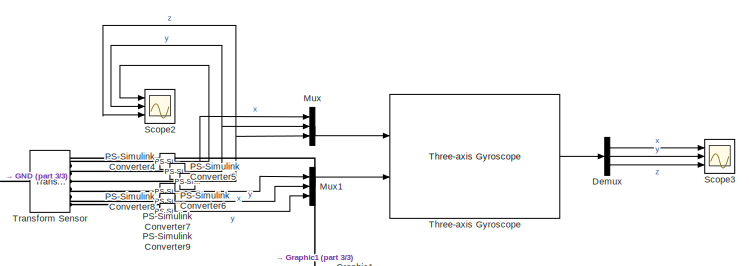
[diagram: root canvas - part 1/3, top right region]
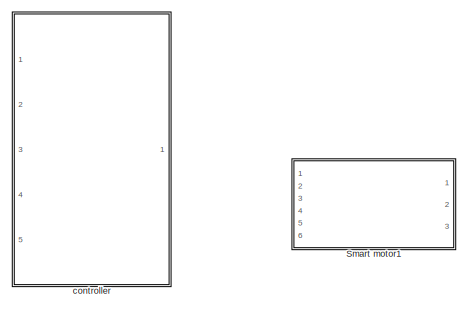
[diagram: root canvas - part 2/3, top left region]
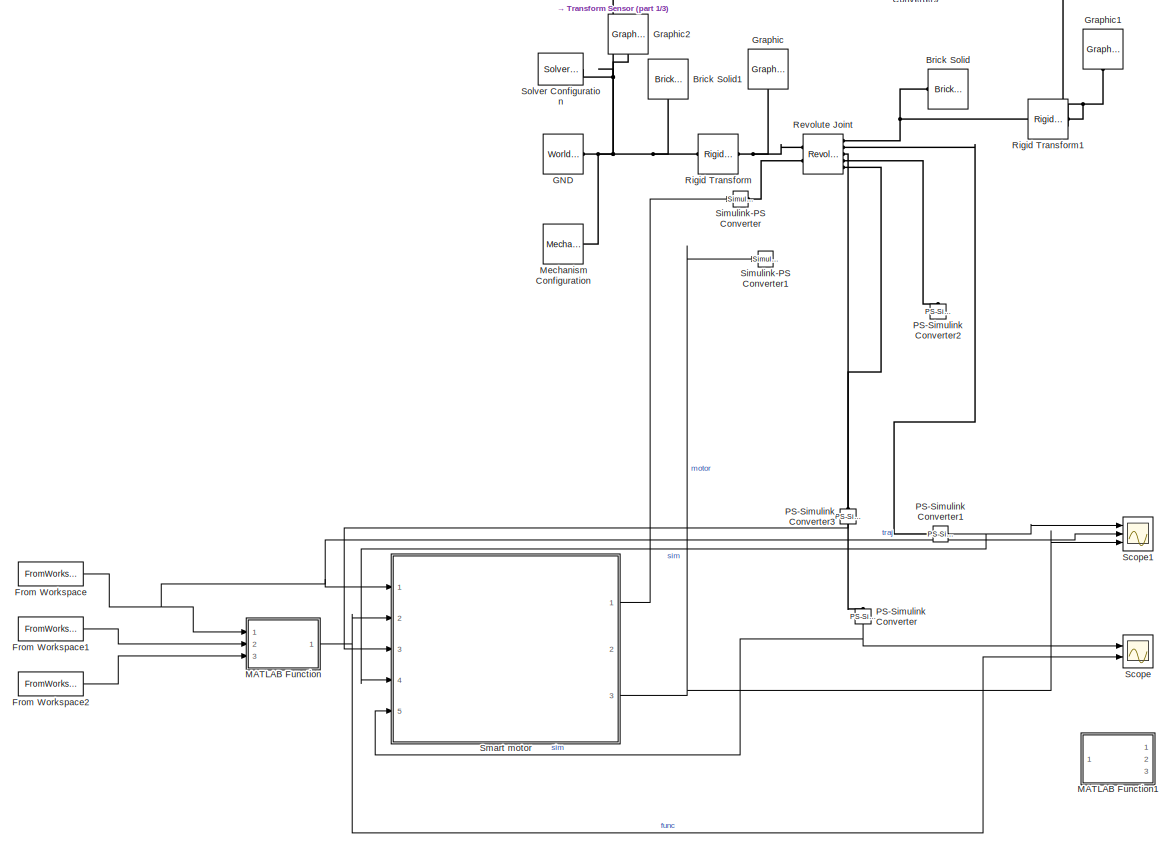
[diagram: root canvas - part 3/3, center side, full height]
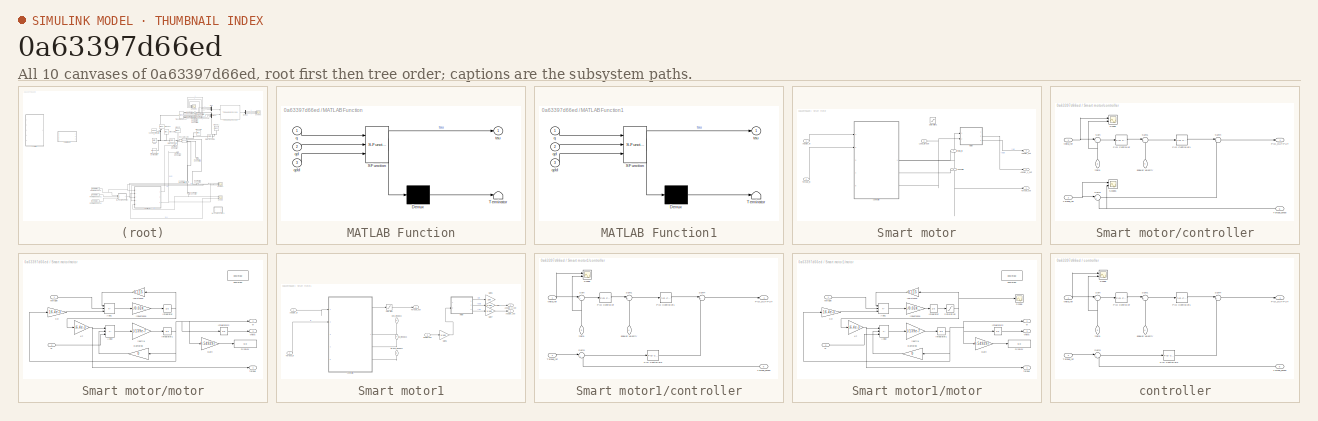
[diagram: thumbnail index - all 10 canvases of the model, root first then tree order]
MODEL slx_0a63397d66ed
KIND model
CONFIG AbsTol = auto
CONFIG EnableMultiTasking = off
CONFIG FixedStep = auto
CONFIG MaxStep = auto
CONFIG MinStep = auto
CONFIG RelTol = 1e-3
CONFIG SampleTimeConstraint = Unconstrained
CONFIG SolverName = VariableStepAuto
CONFIG StartTime = 0.0
CONFIG StopTime = 5
BLOCK [Reference] Brick Solid  REF=sm_lib/Body Elements/Brick Solid
  Ports = [0, 0, 0, 0, 0, 1, 1]
  SourceBlock = sm_lib/Body Elements/Brick Solid
  SourceProductBaseCode = MS
  SourceType = Brick Solid
BLOCK [Reference] Brick Solid1  REF=sm_lib/Body Elements/Brick Solid
  NameLocation = left
  Ports = [0, 0, 0, 0, 0, 1, 1]
  SourceBlock = sm_lib/Body Elements/Brick Solid
  SourceProductBaseCode = MS
  SourceType = Brick Solid
BLOCK [Demux] Demux
  Outputs = 3
  Ports = [1, 3]
BLOCK [FromWorkspace] From Workspace
  VariableName = q1dsim
BLOCK [FromWorkspace] From Workspace1
  VariableName = q1vsim
BLOCK [FromWorkspace] From Workspace2
  VariableName = q1asim
BLOCK [Reference] GND  REF=sm_lib/Frames and
Transforms/World Frame
  Ports = [0, 0, 0, 0, 0, 0, 1]
  SourceBlock = sm_lib/Frames and\nTransforms/World Frame
  SourceProductBaseCode = MS
  SourceType = World Frame
BLOCK [Reference] Graphic  REF=sm_lib/Body Elements/Graphic
  NameLocation = left
  Ports = [0, 0, 0, 0, 0, 0, 1]
  SourceBlock = sm_lib/Body Elements/Graphic
  SourceProductBaseCode = MS
  SourceType = Graphic
BLOCK [Reference] Graphic1  REF=sm_lib/Body Elements/Graphic
  NameLocation = left
  Ports = [0, 0, 0, 0, 0, 0, 1]
  SourceBlock = sm_lib/Body Elements/Graphic
  SourceProductBaseCode = MS
  SourceType = Graphic
BLOCK [Reference] Graphic2  REF=sm_lib/Body Elements/Graphic
  NameLocation = left
  Ports = [0, 0, 0, 0, 0, 0, 1]
  SourceBlock = sm_lib/Body Elements/Graphic
  SourceProductBaseCode = MS
  SourceType = Graphic
BLOCK [SubSystem] MATLAB Function
  ErrorFcn = Stateflow.Translate.translate
  PermitHierarchicalResolution = ExplicitOnly
  Ports = [3, 1]
  RequestExecContextInheritance = off
  SFBlockType = MATLAB Function
  TreatAsAtomicUnit = on
BLOCK [Demux] MATLAB Function/ Demux 
  Outputs = 1
  Ports = [1, 1]
BLOCK [S-Function] MATLAB Function/ SFunction 
  EnableBusSupport = on
  FunctionName = sf_sfun
  PortCounts = [3 2]
  Ports = [3, 2]
  SFcnIsStateOwnerBlock = off
  SFunctionDeploymentMode = off
  Tag = Stateflow S-Function 2
BLOCK [Terminator] MATLAB Function/ Terminator 
BLOCK [Inport] MATLAB Function/q
BLOCK [Inport] MATLAB Function/qd
  Port = 2
BLOCK [Inport] MATLAB Function/qdd
  Port = 3
BLOCK [Outport] MATLAB Function/tau
BLOCK [SubSystem] MATLAB Function1
  Commented = on
  ErrorFcn = Stateflow.Translate.translate
  NameLocation = top
  PermitHierarchicalResolution = ExplicitOnly
  Ports = [3, 1]
  RequestExecContextInheritance = off
  SFBlockType = MATLAB Function
  TreatAsAtomicUnit = on
BLOCK [Demux] MATLAB Function1/ Demux 
  Outputs = 1
  Ports = [1, 1]
BLOCK [S-Function] MATLAB Function1/ SFunction 
  EnableBusSupport = on
  FunctionName = sf_sfun
  PortCounts = [3 2]
  Ports = [3, 2]
  SFcnIsStateOwnerBlock = off
  SFunctionDeploymentMode = off
  Tag = Stateflow S-Function 1
BLOCK [Terminator] MATLAB Function1/ Terminator 
BLOCK [Inport] MATLAB Function1/q
BLOCK [Inport] MATLAB Function1/qd
  Port = 2
BLOCK [Inport] MATLAB Function1/qdd
  Port = 3
BLOCK [Outport] MATLAB Function1/tau
BLOCK [Reference] Mechanism Configuration  REF=sm_lib/Utilities/Mechanism
Configuration
  Ports = [0, 0, 0, 0, 0, 0, 1]
  SourceBlock = sm_lib/Utilities/Mechanism\nConfiguration
  SourceProductBaseCode = MS
  SourceType = Mechanism\nConfiguration
BLOCK [Mux] Mux
  DisplayOption = bar
  Inputs = 3
  Ports = [3, 1]
BLOCK [Mux] Mux1
  DisplayOption = bar
  Inputs = 3
  Ports = [3, 1]
BLOCK [Reference] PS-Simulink Converter  REF=nesl_utility/PS-Simulink
Converter
  NameLocation = left
  Ports = [0, 1, 0, 0, 0, 1]
  SourceBlock = nesl_utility/PS-Simulink\nConverter
  SourceProductBaseCode = PW,SS
  SourceType = PS-Simulink\nConverter
BLOCK [Reference] PS-Simulink Converter1  REF=nesl_utility/PS-Simulink
Converter
  Ports = [0, 1, 0, 0, 0, 1]
  SourceBlock = nesl_utility/PS-Simulink\nConverter
  SourceProductBaseCode = PW,SS
  SourceType = PS-Simulink\nConverter
BLOCK [Reference] PS-Simulink Converter2  REF=nesl_utility/PS-Simulink
Converter
  NameLocation = left
  Ports = [0, 1, 0, 0, 0, 1]
  SourceBlock = nesl_utility/PS-Simulink\nConverter
  SourceProductBaseCode = PW,SS
  SourceType = PS-Simulink\nConverter
BLOCK [Reference] PS-Simulink Converter3  REF=nesl_utility/PS-Simulink
Converter
  NameLocation = left
  Ports = [0, 1, 0, 0, 0, 1]
  SourceBlock = nesl_utility/PS-Simulink\nConverter
  SourceProductBaseCode = PW,SS
  SourceType = PS-Simulink\nConverter
BLOCK [Reference] PS-Simulink Converter4  REF=nesl_utility/PS-Simulink
Converter
  Ports = [0, 1, 0, 0, 0, 1]
  SourceBlock = nesl_utility/PS-Simulink\nConverter
  SourceProductBaseCode = PW,SS
  SourceType = PS-Simulink\nConverter
BLOCK [Reference] PS-Simulink Converter5  REF=nesl_utility/PS-Simulink
Converter
  Ports = [0, 1, 0, 0, 0, 1]
  SourceBlock = nesl_utility/PS-Simulink\nConverter
  SourceProductBaseCode = PW,SS
  SourceType = PS-Simulink\nConverter
BLOCK [Reference] PS-Simulink Converter6  REF=nesl_utility/PS-Simulink
Converter
  Ports = [0, 1, 0, 0, 0, 1]
  SourceBlock = nesl_utility/PS-Simulink\nConverter
  SourceProductBaseCode = PW,SS
  SourceType = PS-Simulink\nConverter
BLOCK [Reference] PS-Simulink Converter7  REF=nesl_utility/PS-Simulink
Converter
  Ports = [0, 1, 0, 0, 0, 1]
  SourceBlock = nesl_utility/PS-Simulink\nConverter
  SourceProductBaseCode = PW,SS
  SourceType = PS-Simulink\nConverter
BLOCK [Reference] PS-Simulink Converter8  REF=nesl_utility/PS-Simulink
Converter
  Ports = [0, 1, 0, 0, 0, 1]
  SourceBlock = nesl_utility/PS-Simulink\nConverter
  SourceProductBaseCode = PW,SS
  SourceType = PS-Simulink\nConverter
BLOCK [Reference] PS-Simulink Converter9  REF=nesl_utility/PS-Simulink
Converter
  Ports = [0, 1, 0, 0, 0, 1]
  SourceBlock = nesl_utility/PS-Simulink\nConverter
  SourceProductBaseCode = PW,SS
  SourceType = PS-Simulink\nConverter
BLOCK [Reference] Revolute Joint  REF=sm_lib/Joints/Revolute Joint
  Ports = [0, 0, 0, 0, 0, 2, 5]
  SourceBlock = sm_lib/Joints/Revolute Joint
  SourceProductBaseCode = MS
  SourceType = Revolute Joint
BLOCK [Reference] Rigid Transform  REF=sm_lib/Frames and
Transforms/Rigid
Transform
  Ports = [0, 0, 0, 0, 0, 1, 1]
  SourceBlock = sm_lib/Frames and\nTransforms/Rigid\nTransform
  SourceProductBaseCode = MS
  SourceType = Rigid\nTransform
BLOCK [Reference] Rigid Transform1  REF=sm_lib/Frames and
Transforms/Rigid
Transform
  Ports = [0, 0, 0, 0, 0, 1, 1]
  SourceBlock = sm_lib/Frames and\nTransforms/Rigid\nTransform
  SourceProductBaseCode = MS
  SourceType = Rigid\nTransform
BLOCK [Scope] Scope
  Floating = off
  NumInputPorts = 2
  Ports = [2]
  ScopeSpecificationString = Simulink.scopes.TimeScopeBlockCfg('CurrentConfiguration', extmgr.ConfigurationSet(extmgr.Configuration('Core','General UI',true),extmgr.Configuration('Core','Source UI',true),extmgr.Configuration('Sources','WiredSimulink',true,'DataLoggingVariableName','ScopeData1'),extmgr.Configuration('Visuals','Time Domain',true,'SerializedDisplays',{struct('MinYLimReal','-0.2289','MaxYLimReal','1.9941','YLabel...<+1390ch>
BLOCK [Scope] Scope1
  Floating = off
  NumInputPorts = 3
  Ports = [3]
  ScopeSpecificationString = Simulink.scopes.TimeScopeBlockCfg('CurrentConfiguration', extmgr.ConfigurationSet(extmgr.Configuration('Core','General UI',true),extmgr.Configuration('Core','Source UI',true),extmgr.Configuration('Sources','WiredSimulink',true,'DataLoggingVariableName','ScopeData2'),extmgr.Configuration('Visuals','Time Domain',true,'SerializedDisplays',{struct('MinYLimReal','-0.20118','MaxYLimReal','1.81059','YLab...<+2691ch>
BLOCK [Scope] Scope2
  Floating = off
  NumInputPorts = 3
  Ports = [3]
  ScopeSpecificationString = Simulink.scopes.TimeScopeBlockCfg('CurrentConfiguration', extmgr.ConfigurationSet(extmgr.Configuration('Core','General UI',true),extmgr.Configuration('Core','Source UI',true),extmgr.Configuration('Sources','WiredSimulink',true,'DataLoggingVariableName','ScopeData1'),extmgr.Configuration('Visuals','Time Domain',true,'SerializedDisplays',{struct('MinYLimReal','-0.07164','MaxYLimReal','0.64475','YLab...<+1397ch>
BLOCK [Scope] Scope3
  Floating = off
  NumInputPorts = 3
  Ports = [3]
  ScopeSpecificationString = Simulink.scopes.TimeScopeBlockCfg('CurrentConfiguration', extmgr.ConfigurationSet(extmgr.Configuration('Core','General UI',true),extmgr.Configuration('Core','Source UI',true),extmgr.Configuration('Sources','WiredSimulink',true,'DataLoggingVariableName','ScopeData2'),extmgr.Configuration('Visuals','Time Domain',true,'SerializedDisplays',{struct('MinYLimReal','-0.15753','MaxYLimReal','0.6641','YLabe...<+1362ch>
BLOCK [Reference] Simulink-PS Converter  REF=nesl_utility/Simulink-PS
Converter
  Ports = [1, 0, 0, 0, 0, 0, 1]
  SourceBlock = nesl_utility/Simulink-PS\nConverter
  SourceProductBaseCode = PW,SS
  SourceType = Simulink-PS\nConverter
BLOCK [Reference] Simulink-PS Converter1  REF=nesl_utility/Simulink-PS
Converter
  Ports = [1, 0, 0, 0, 0, 0, 1]
  SourceBlock = nesl_utility/Simulink-PS\nConverter
  SourceProductBaseCode = PW,SS
  SourceType = Simulink-PS\nConverter
BLOCK [SubSystem] Smart motor
  Ports = [5, 3]
  RequestExecContextInheritance = off
BLOCK [Inport] Smart motor/Angular_in
BLOCK [Outport] Smart motor/Angular_out
  Port = 3
BLOCK [Outport] Smart motor/Angular_v_out
  Port = 2
BLOCK [Inport] Smart motor/Load_torque
  Port = 3
BLOCK [Saturate] Smart motor/Saturation1
  LowerLimit = -12
  UpperLimit = 12
BLOCK [Inport] Smart motor/Torque_in
  Port = 2
BLOCK [Outport] Smart motor/Torque_out
BLOCK [Inport] Smart motor/angVelfb
  NameLocation = top
  Port = 5
BLOCK [SubSystem] Smart motor/controller
  PortSchema = {"entries":[{"content":{"sides":[{"content":{"connectorIds":["In1","In2"]},"type":"ConnectorPlacement.EquallySpacedRectSide","uuid":"8a7634be-fa1b-404b-89a0-2c01fe6be74e"},{"content":{"connectorIds":["Out1","In3","In4","In5"],"side":"RIGHT"},"type":"ConnectorPlacement.EquallySpacedRectSide","uuid":"8f130a65-85af-479a-b8ce-1781e3e6a993"},{"content":{"connectorIds":[],"side":"TOP"},"type":"Connector...<+264ch>  <repeated x3 — deduplicated; at blocks: controller>
  Ports = [5, 1]
  RequestExecContextInheritance = off
BLOCK [Reference] Smart motor/controller/PID Controller  REF=slpidlib/PID Controller
  Ports = [1, 1]
  SourceBlock = slpidlib/PID Controller
  SourceProductBaseCode = SL
  SourceType = PID 1dof
BLOCK [Reference] Smart motor/controller/PID Controller1  REF=slpidlib/PID Controller
  Ports = [1, 1]
  SourceBlock = slpidlib/PID Controller
  SourceProductBaseCode = SL
  SourceType = PID 1dof
BLOCK [Outport] Smart motor/controller/PID_OUTPUT
BLOCK [Scope] Smart motor/controller/Scope
  Floating = off
  NumInputPorts = 2
  Ports = [2]
  ScopeSpecificationString = Simulink.scopes.TimeScopeBlockCfg('CurrentConfiguration', extmgr.ConfigurationSet(extmgr.Configuration('Core','General UI',true),extmgr.Configuration('Core','Source UI',true),extmgr.Configuration('Sources','WiredSimulink',true,'DataLoggingVariableName','ScopeData3'),extmgr.Configuration('Visuals','Time Domain',true,'SerializedDisplays',{struct('MinYLimReal','-0.20118','MaxYLimReal','1.81059','YLab...<+1376ch>
BLOCK [Scope] Smart motor/controller/Scope1
  Floating = off
  NumInputPorts = 2
  Ports = [2]
  ScopeSpecificationString = Simulink.scopes.TimeScopeBlockCfg('CurrentConfiguration', extmgr.ConfigurationSet(extmgr.Configuration('Core','General UI',true),extmgr.Configuration('Core','Source UI',true),extmgr.Configuration('Sources','WiredSimulink',true,'DataLoggingVariableName','ScopeData4'),extmgr.Configuration('Visuals','Time Domain',true),extmgr.Configuration('Tools','Plot Navigation',true),extmgr.Configuration('Tools',...<+40ch>
BLOCK [Sum] Smart motor/controller/Sum
  Inputs = |+-
  Ports = [2, 1]
BLOCK [Sum] Smart motor/controller/Sum1
  Inputs = |+-
  Ports = [2, 1]
BLOCK [Sum] Smart motor/controller/Sum3
  Inputs = |+-
  Ports = [2, 1]
BLOCK [Sum] Smart motor/controller/Sum4
  Inputs = |++
  Ports = [2, 1]
BLOCK [Inport] Smart motor/controller/Torque_ref
  Port = 2
BLOCK [Inport] Smart motor/controller/Torque_sense
  NameLocation = top
  Port = 5
BLOCK [Inport] Smart motor/controller/angular velocity
  NameLocation = right
  Port = 4
BLOCK [Inport] Smart motor/controller/theta
  NameLocation = right
  Port = 3
BLOCK [Inport] Smart motor/controller/theta_ref
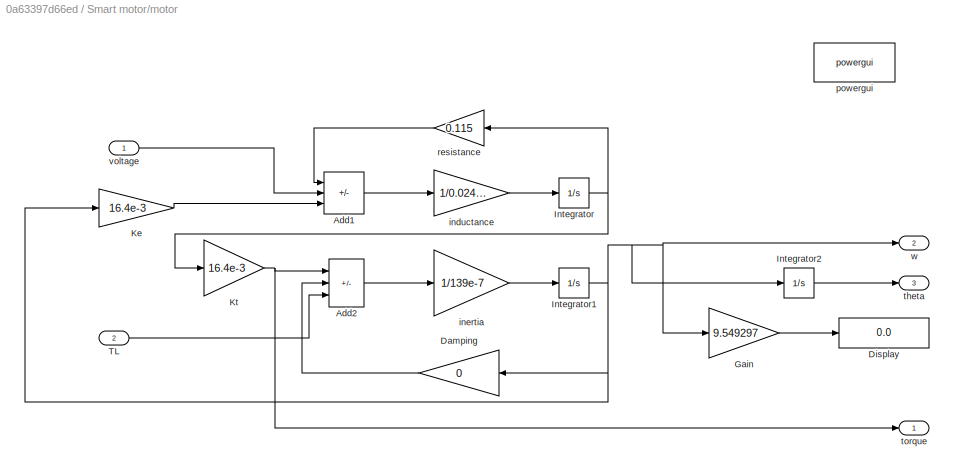
BLOCK [SubSystem] Smart motor/motor
  Ports = [2, 3]
  RequestExecContextInheritance = off
BLOCK [Sum] Smart motor/motor/Add1
  IconShape = rectangular
  Inputs = -+-
  Ports = [3, 1]
BLOCK [Sum] Smart motor/motor/Add2
  IconShape = rectangular
  Inputs = +-+
  Ports = [3, 1]
BLOCK [Gain] Smart motor/motor/Damping
  Gain = 0
  NameLocation = top
BLOCK [Display] Smart motor/motor/Display
  Decimation = 1
  Ports = [1]
BLOCK [Gain] Smart motor/motor/Gain
  Gain = 9.549297
BLOCK [Integrator] Smart motor/motor/Integrator
  Ports = [1, 1]
BLOCK [Integrator] Smart motor/motor/Integrator1
  Ports = [1, 1]
BLOCK [Integrator] Smart motor/motor/Integrator2
  Ports = [1, 1]
BLOCK [Gain] Smart motor/motor/Ke
  Gain = 16.4e-3
BLOCK [Gain] Smart motor/motor/Kt
  Gain = 16.4e-3
BLOCK [Inport] Smart motor/motor/TL
  Port = 2
BLOCK [Gain] Smart motor/motor/inductance
  Gain = 1/0.0245e-3
BLOCK [Gain] Smart motor/motor/inertia
  Gain = 1/139e-7
BLOCK [Reference] Smart motor/motor/powergui  REF=spspowerguiLib/powergui
  Ports = []
  Priority = 1
  SourceBlock = spspowerguiLib/powergui
  SourceProductBaseCode = PS
  SourceType = PSB option menu block
BLOCK [Gain] Smart motor/motor/resistance
  Gain = 0.115
  NameLocation = top
BLOCK [Outport] Smart motor/motor/theta
  Port = 3
BLOCK [Outport] Smart motor/motor/torque
BLOCK [Inport] Smart motor/motor/voltage
BLOCK [Outport] Smart motor/motor/w
  Port = 2
BLOCK [Inport] Smart motor/theta_fb
  NameLocation = top
  Port = 4
BLOCK [SubSystem] Smart motor1
  Commented = on
  Ports = [6, 3]
  RequestExecContextInheritance = off
BLOCK [Inport] Smart motor1/Angular_in
BLOCK [Outport] Smart motor1/Angular_out
  Port = 3
BLOCK [Outport] Smart motor1/Angular_v_out
  Port = 2
BLOCK [Gain] Smart motor1/Gain1
  Gain = 1/100
BLOCK [Gain] Smart motor1/Gain5
  Gain = 1/100
BLOCK [Gain] Smart motor1/Gain6
  Gain = 100
BLOCK [Gain] Smart motor1/Gain7
  Gain = 1/100
BLOCK [Saturate] Smart motor1/Saturation
  LowerLimit = -12
  UpperLimit = 12
BLOCK [Inport] Smart motor1/Torque_in
  Port = 2
BLOCK [Outport] Smart motor1/Torque_out
BLOCK [SubSystem] Smart motor1/controller
  Ports = [5, 1]
  RequestExecContextInheritance = off
BLOCK [Reference] Smart motor1/controller/PID Controller  REF=slpidlib/PID Controller
  Ports = [1, 1]
  SourceBlock = slpidlib/PID Controller
  SourceProductBaseCode = SL
  SourceType = PID 1dof
BLOCK [Reference] Smart motor1/controller/PID Controller1  REF=slpidlib/PID Controller
  Ports = [1, 1]
  SourceBlock = slpidlib/PID Controller
  SourceProductBaseCode = SL
  SourceType = PID 1dof
BLOCK [Reference] Smart motor1/controller/PID Controller3  REF=slpidlib/PID Controller
  Ports = [1, 1]
  SourceBlock = slpidlib/PID Controller
  SourceProductBaseCode = SL
  SourceType = PID 1dof
BLOCK [Outport] Smart motor1/controller/PID_OUTPUT
BLOCK [Scope] Smart motor1/controller/Scope
  Floating = off
  NumInputPorts = 2
  Ports = [2]
  ScopeSpecificationString = Simulink.scopes.TimeScopeBlockCfg('CurrentConfiguration', extmgr.ConfigurationSet(extmgr.Configuration('Core','General UI',true),extmgr.Configuration('Core','Source UI',true),extmgr.Configuration('Sources','WiredSimulink',true,'DataLoggingVariableName','ScopeData8'),extmgr.Configuration('Visuals','Time Domain',true,'SerializedDisplays',{struct('MinYLimReal','-0.4827','MaxYLimReal','0.31629','YLabe...<+1446ch>
BLOCK [Sum] Smart motor1/controller/Sum
  Inputs = |+-
  Ports = [2, 1]
BLOCK [Sum] Smart motor1/controller/Sum1
  Inputs = |+-
  Ports = [2, 1]
BLOCK [Sum] Smart motor1/controller/Sum3
  Inputs = |+-
  Ports = [2, 1]
BLOCK [Sum] Smart motor1/controller/Sum4
  Inputs = |++
  Ports = [2, 1]
BLOCK [Inport] Smart motor1/controller/Torque_ref
  Port = 2
BLOCK [Inport] Smart motor1/controller/Torque_sense
  NameLocation = top
  Port = 5
BLOCK [Inport] Smart motor1/controller/angular velocity
  NameLocation = right
  Port = 4
BLOCK [Inport] Smart motor1/controller/theta
  NameLocation = right
  Port = 3
BLOCK [Inport] Smart motor1/controller/theta_ref
BLOCK [Inport] Smart motor1/load torque
  Port = 6
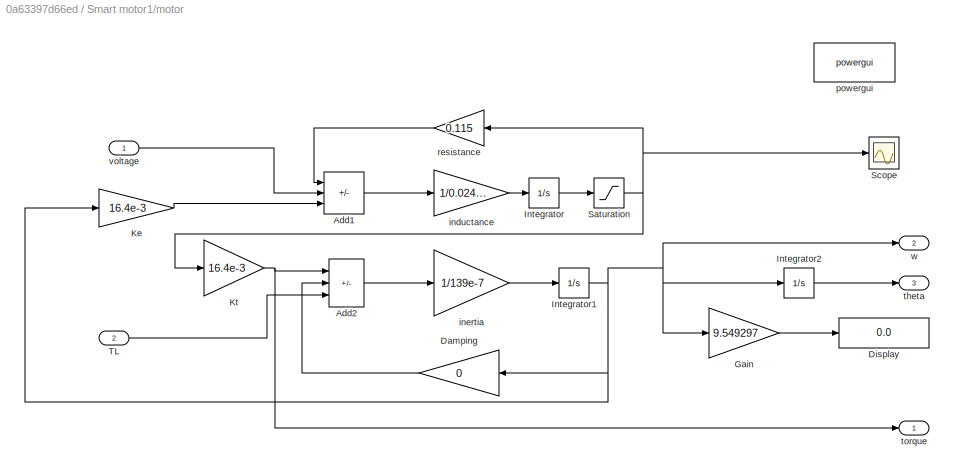
BLOCK [SubSystem] Smart motor1/motor
  Ports = [2, 3]
  RequestExecContextInheritance = off
BLOCK [Sum] Smart motor1/motor/Add1
  IconShape = rectangular
  Inputs = -+-
  Ports = [3, 1]
BLOCK [Sum] Smart motor1/motor/Add2
  IconShape = rectangular
  Inputs = +-+
  Ports = [3, 1]
BLOCK [Gain] Smart motor1/motor/Damping
  Gain = 0
  NameLocation = top
BLOCK [Display] Smart motor1/motor/Display
  Decimation = 1
  Ports = [1]
BLOCK [Gain] Smart motor1/motor/Gain
  Gain = 9.549297
BLOCK [Integrator] Smart motor1/motor/Integrator
  Ports = [1, 1]
BLOCK [Integrator] Smart motor1/motor/Integrator1
  Ports = [1, 1]
BLOCK [Integrator] Smart motor1/motor/Integrator2
  Ports = [1, 1]
BLOCK [Gain] Smart motor1/motor/Ke
  Gain = 16.4e-3
BLOCK [Gain] Smart motor1/motor/Kt
  Gain = 16.4e-3
BLOCK [Saturate] Smart motor1/motor/Saturation
  LowerLimit = -6
  UpperLimit = 6
BLOCK [Scope] Smart motor1/motor/Scope
  Floating = off
  NumInputPorts = 1
  Ports = [1]
  ScopeSpecificationString = Simulink.scopes.TimeScopeBlockCfg('CurrentConfiguration', extmgr.ConfigurationSet(extmgr.Configuration('Core','General UI',true),extmgr.Configuration('Core','Source UI',true),extmgr.Configuration('Sources','WiredSimulink',true,'DataLoggingVariableName','ScopeData10'),extmgr.Configuration('Visuals','Time Domain',true,'SerializedDisplays',{struct('MinYLimReal','-7.5','MaxYLimReal','7.5','YLabelReal'...<+1436ch>
BLOCK [Inport] Smart motor1/motor/TL
  Port = 2
BLOCK [Gain] Smart motor1/motor/inductance
  Gain = 1/0.0245e-3
BLOCK [Gain] Smart motor1/motor/inertia
  Gain = 1/139e-7
BLOCK [Reference] Smart motor1/motor/powergui  REF=spspowerguiLib/powergui
  Ports = []
  Priority = 1
  SourceBlock = spspowerguiLib/powergui
  SourceProductBaseCode = PS
  SourceType = PSB option menu block
BLOCK [Gain] Smart motor1/motor/resistance
  Gain = 0.115
  NameLocation = top
BLOCK [Outport] Smart motor1/motor/theta
  Port = 3
BLOCK [Outport] Smart motor1/motor/torque
BLOCK [Inport] Smart motor1/motor/voltage
BLOCK [Outport] Smart motor1/motor/w
  Port = 2
BLOCK [Inport] Smart motor1/pos_feedbck
  NameLocation = left
  Port = 3
BLOCK [Inport] Smart motor1/torque_feedbck
  NameLocation = left
  Port = 5
BLOCK [Inport] Smart motor1/w_feedbck
  NameLocation = left
  Port = 4
BLOCK [Reference] Solver Configuration  REF=nesl_utility/Solver
Configuration
  Ports = [0, 0, 0, 0, 0, 0, 1]
  SourceBlock = nesl_utility/Solver\nConfiguration
  SourceProductBaseCode = PW,SS
  SourceType = Solver\nConfiguration
BLOCK [Reference] Three-axis Gyroscope  REF=aerolibnav/Three-axis Gyroscope
  Ports = [2, 1]
  SourceBlock = aerolibnav/Three-axis Gyroscope
  SourceProductBaseCode = AE
  SourceType = Three-axis Gyroscope
BLOCK [Reference] Transform Sensor  REF=sm_lib/Frames and
Transforms/Transform
Sensor
  Ports = [0, 0, 0, 0, 0, 1, 7]
  SourceBlock = sm_lib/Frames and\nTransforms/Transform\nSensor
  SourceProductBaseCode = MS
  SourceType = Transform\nSensor
BLOCK [SubSystem] controller
  Ports = [5, 1]
  RequestExecContextInheritance = off
BLOCK [Reference] controller/PID Controller  REF=slpidlib/PID Controller
  Ports = [1, 1]
  SourceBlock = slpidlib/PID Controller
  SourceProductBaseCode = SL
  SourceType = PID 1dof
BLOCK [Reference] controller/PID Controller1  REF=slpidlib/PID Controller
  Ports = [1, 1]
  SourceBlock = slpidlib/PID Controller
  SourceProductBaseCode = SL
  SourceType = PID 1dof
BLOCK [Reference] controller/PID Controller3  REF=slpidlib/PID Controller
  Ports = [1, 1]
  SourceBlock = slpidlib/PID Controller
  SourceProductBaseCode = SL
  SourceType = PID 1dof
BLOCK [Outport] controller/PID_OUTPUT
BLOCK [Scope] controller/Scope
  Floating = off
  NumInputPorts = 2
  Ports = [2]
  ScopeSpecificationString = Simulink.scopes.TimeScopeBlockCfg('CurrentConfiguration', extmgr.ConfigurationSet(extmgr.Configuration('Core','General UI',true),extmgr.Configuration('Core','Source UI',true),extmgr.Configuration('Sources','WiredSimulink',true,'DataLoggingVariableName','ScopeData8'),extmgr.Configuration('Visuals','Time Domain',true,'SerializedDisplays',{struct('MinYLimReal','-0.4827','MaxYLimReal','0.31629','YLabe...<+1446ch>
BLOCK [Sum] controller/Sum
  Inputs = |+-
  Ports = [2, 1]
BLOCK [Sum] controller/Sum1
  Inputs = |+-
  Ports = [2, 1]
BLOCK [Sum] controller/Sum3
  Inputs = |+-
  Ports = [2, 1]
BLOCK [Sum] controller/Sum4
  Inputs = |++
  Ports = [2, 1]
BLOCK [Inport] controller/Torque_ref
  Port = 2
BLOCK [Inport] controller/Torque_sense
  NameLocation = top
  Port = 5
BLOCK [Inport] controller/angular velocity
  NameLocation = right
  Port = 4
BLOCK [Inport] controller/theta
  NameLocation = right
  Port = 3
BLOCK [Inport] controller/theta_ref
LINE Demux:1 -> Scope3:1
LINE Demux:2 -> Scope3:2
LINE Demux:3 -> Scope3:3
LINE From Workspace1:1 -> MATLAB Function:2
LINE From Workspace2:1 -> MATLAB Function:3
NET From Workspace:1 -> MATLAB Function:1, Scope1:2, Smart motor:1
NET MATLAB Function:1 -> Scope:2, Smart motor:2
LINE Mux1:1 -> Three-axis Gyroscope:2
LINE Mux:1 -> Three-axis Gyroscope:1
NET PS-Simulink Converter1:1 -> Scope1:1, Smart motor:4
LINE PS-Simulink Converter3:1 -> Smart motor:3
NET PS-Simulink Converter4:1 -> Mux:1, Scope2:1
NET PS-Simulink Converter5:1 -> Mux:2, Scope2:2
NET PS-Simulink Converter6:1 -> Mux:3, Scope2:3
LINE PS-Simulink Converter7:1 -> Mux1:1
LINE PS-Simulink Converter8:1 -> Mux1:2
LINE PS-Simulink Converter9:1 -> Mux1:3
NET PS-Simulink Converter:1 -> Scope:1, Smart motor:5
LINE Smart motor/Angular_in:1 -> Smart motor/controller:1
NET Smart motor/Load_torque:1 -> Smart motor/controller:5, Smart motor/motor:2
LINE Smart motor/Torque_in:1 -> Smart motor/controller:2
LINE Smart motor/angVelfb:1 -> Smart motor/controller:4
LINE Smart motor/controller/PID Controller1:1 -> Smart motor/controller/Sum4:1
LINE Smart motor/controller/PID Controller:1 -> Smart motor/controller/Sum1:1
LINE Smart motor/controller/Sum1:1 -> Smart motor/controller/PID Controller1:1
LINE Smart motor/controller/Sum3:1 -> Smart motor/controller/Sum4:2
LINE Smart motor/controller/Sum4:1 -> Smart motor/controller/PID_OUTPUT:1
LINE Smart motor/controller/Sum:1 -> Smart motor/controller/PID Controller:1
NET Smart motor/controller/Torque_ref:1 -> Smart motor/controller/Scope1:1, Smart motor/controller/Sum3:1
NET Smart motor/controller/Torque_sense:1 -> Smart motor/controller/Scope1:2, Smart motor/controller/Sum3:2
LINE Smart motor/controller/angular velocity:1 -> Smart motor/controller/Sum1:2
NET Smart motor/controller/theta:1 -> Smart motor/controller/Scope:2, Smart motor/controller/Sum:2
NET Smart motor/controller/theta_ref:1 -> Smart motor/controller/Scope:1, Smart motor/controller/Sum:1
NET Smart motor/controller:1 -> Smart motor/Torque_out:1, Smart motor/motor:1
LINE Smart motor/motor/Add1:1 -> Smart motor/motor/inductance:1
LINE Smart motor/motor/Add2:1 -> Smart motor/motor/inertia:1
LINE Smart motor/motor/Damping:1 -> Smart motor/motor/Add2:2
LINE Smart motor/motor/Gain:1 -> Smart motor/motor/Display:1
NET Smart motor/motor/Integrator1:1 -> Smart motor/motor/Damping:1, Smart motor/motor/Gain:1, Smart motor/motor/Integrator2:1, Smart motor/motor/Ke:1, Smart motor/motor/w:1
LINE Smart motor/motor/Integrator2:1 -> Smart motor/motor/theta:1
NET Smart motor/motor/Integrator:1 -> Smart motor/motor/Kt:1, Smart motor/motor/resistance:1
LINE Smart motor/motor/Ke:1 -> Smart motor/motor/Add1:3
NET Smart motor/motor/Kt:1 -> Smart motor/motor/Add2:1, Smart motor/motor/torque:1
LINE Smart motor/motor/TL:1 -> Smart motor/motor/Add2:3
LINE Smart motor/motor/inductance:1 -> Smart motor/motor/Integrator:1
LINE Smart motor/motor/inertia:1 -> Smart motor/motor/Integrator1:1
LINE Smart motor/motor/resistance:1 -> Smart motor/motor/Add1:1
LINE Smart motor/motor/voltage:1 -> Smart motor/motor/Add1:2
LINE Smart motor/motor:2 -> Smart motor/Angular_v_out:1
LINE Smart motor/motor:3 -> Smart motor/Angular_out:1
LINE Smart motor/theta_fb:1 -> Smart motor/controller:3
LINE Smart motor1/Angular_in:1 -> Smart motor1/controller:1
LINE Smart motor1/Gain1:1 -> Smart motor1/Angular_v_out:1
LINE Smart motor1/Gain5:1 -> Smart motor1/motor:2
LINE Smart motor1/Gain7:1 -> Smart motor1/Angular_out:1
LINE Smart motor1/Saturation:1 -> Smart motor1/Torque_out:1
LINE Smart motor1/Torque_in:1 -> Smart motor1/controller:2
LINE Smart motor1/controller/PID Controller1:1 -> Smart motor1/controller/Sum4:1
LINE Smart motor1/controller/PID Controller3:1 -> Smart motor1/controller/Sum4:2
LINE Smart motor1/controller/PID Controller:1 -> Smart motor1/controller/Sum1:1
LINE Smart motor1/controller/Sum1:1 -> Smart motor1/controller/PID Controller1:1
LINE Smart motor1/controller/Sum3:1 -> Smart motor1/controller/PID Controller3:1
LINE Smart motor1/controller/Sum4:1 -> Smart motor1/controller/PID_OUTPUT:1
LINE Smart motor1/controller/Sum:1 -> Smart motor1/controller/PID Controller:1
LINE Smart motor1/controller/Torque_ref:1 -> Smart motor1/controller/Sum3:1
LINE Smart motor1/controller/Torque_sense:1 -> Smart motor1/controller/Sum3:2
LINE Smart motor1/controller/angular velocity:1 -> Smart motor1/controller/Sum1:2
NET Smart motor1/controller/theta:1 -> Smart motor1/controller/Scope:2, Smart motor1/controller/Sum:2
NET Smart motor1/controller/theta_ref:1 -> Smart motor1/controller/Scope:1, Smart motor1/controller/Sum:1
LINE Smart motor1/controller:1 -> Smart motor1/Saturation:1
LINE Smart motor1/load torque:1 -> Smart motor1/Gain5:1
LINE Smart motor1/motor/Add1:1 -> Smart motor1/motor/inductance:1
LINE Smart motor1/motor/Add2:1 -> Smart motor1/motor/inertia:1
LINE Smart motor1/motor/Damping:1 -> Smart motor1/motor/Add2:2
LINE Smart motor1/motor/Gain:1 -> Smart motor1/motor/Display:1
NET Smart motor1/motor/Integrator1:1 -> Smart motor1/motor/Damping:1, Smart motor1/motor/Gain:1, Smart motor1/motor/Integrator2:1, Smart motor1/motor/Ke:1, Smart motor1/motor/w:1
LINE Smart motor1/motor/Integrator2:1 -> Smart motor1/motor/theta:1
LINE Smart motor1/motor/Integrator:1 -> Smart motor1/motor/Saturation:1
LINE Smart motor1/motor/Ke:1 -> Smart motor1/motor/Add1:3
NET Smart motor1/motor/Kt:1 -> Smart motor1/motor/Add2:1, Smart motor1/motor/torque:1
NET Smart motor1/motor/Saturation:1 -> Smart motor1/motor/Kt:1, Smart motor1/motor/Scope:1, Smart motor1/motor/resistance:1
LINE Smart motor1/motor/TL:1 -> Smart motor1/motor/Add2:3
LINE Smart motor1/motor/inductance:1 -> Smart motor1/motor/Integrator:1
LINE Smart motor1/motor/inertia:1 -> Smart motor1/motor/Integrator1:1
LINE Smart motor1/motor/resistance:1 -> Smart motor1/motor/Add1:1
LINE Smart motor1/motor/voltage:1 -> Smart motor1/motor/Add1:2
LINE Smart motor1/motor:1 -> Smart motor1/Gain6:1
LINE Smart motor1/motor:2 -> Smart motor1/Gain1:1
LINE Smart motor1/motor:3 -> Smart motor1/Gain7:1
LINE Smart motor1/pos_feedbck:1 -> Smart motor1/controller:3
LINE Smart motor1/torque_feedbck:1 -> Smart motor1/controller:5
LINE Smart motor1/w_feedbck:1 -> Smart motor1/controller:4
LINE Smart motor:1 -> Simulink-PS Converter:1
NET Smart motor:3 -> Scope1:3, Simulink-PS Converter1:1
LINE Three-axis Gyroscope:1 -> Demux:1
LINE controller/PID Controller1:1 -> controller/Sum4:1
LINE controller/PID Controller3:1 -> controller/Sum4:2
LINE controller/PID Controller:1 -> controller/Sum1:1
LINE controller/Sum1:1 -> controller/PID Controller1:1
LINE controller/Sum3:1 -> controller/PID Controller3:1
LINE controller/Sum4:1 -> controller/PID_OUTPUT:1
LINE controller/Sum:1 -> controller/PID Controller:1
LINE controller/Torque_ref:1 -> controller/Sum3:1
LINE controller/Torque_sense:1 -> controller/Sum3:2
LINE controller/angular velocity:1 -> controller/Sum1:2
NET controller/theta:1 -> controller/Scope:2, controller/Sum:2
NET controller/theta_ref:1 -> controller/Scope:1, controller/Sum:1
PNET net1: Brick Solid1:RConn1 -- GND:RConn1 -- Graphic2:RConn1 -- Mechanism Configuration:RConn1 -- Rigid Transform:LConn1 -- Solver Configuration:RConn1 -- Transform Sensor:LConn1
PNET net2: Brick Solid:LConn1 -- Revolute Joint:RConn1 -- Rigid Transform1:LConn1
PNET net3: Graphic1:RConn1 -- Rigid Transform1:RConn1 -- Transform Sensor:RConn1
PNET net4: Graphic:RConn1 -- Revolute Joint:LConn1 -- Rigid Transform:RConn1
PLINE PS-Simulink Converter1:LConn1 -- Revolute Joint:RConn2
PLINE PS-Simulink Converter2:LConn1 -- Revolute Joint:RConn4
PLINE PS-Simulink Converter3:LConn1 -- Revolute Joint:RConn5
PLINE PS-Simulink Converter4:LConn1 -- Transform Sensor:RConn2
PLINE PS-Simulink Converter5:LConn1 -- Transform Sensor:RConn3
PLINE PS-Simulink Converter6:LConn1 -- Transform Sensor:RConn4
PLINE PS-Simulink Converter7:LConn1 -- Transform Sensor:RConn5
PLINE PS-Simulink Converter8:LConn1 -- Transform Sensor:RConn6
PLINE PS-Simulink Converter9:LConn1 -- Transform Sensor:RConn7
PLINE PS-Simulink Converter:LConn1 -- Revolute Joint:RConn3
PLINE Revolute Joint:LConn2 -- Simulink-PS Converter:RConn1
note: NET lines group one-source signal fan-out (src -> all destinations, sorted); 1:1 wires keep LINE; PNET lines group multi-terminal physical nets as a canonical sorted terminal list (undirected conserving connections); 2-terminal nets keep the pairwise PLINE form
CHART MATLAB Function states=1 transitions=1
  STATE_LABEL 'eML_blk_kernel()'
  STATE_LABEL 'SCRIPT:\nfunction tau = fcn(q,qd,qdd)\ng = -9.80665;\nm=1.2;\nl =0.3;\nb=0.05;\nIyy = 0.0007225;\ntau = -m*g*(l/2)*cos(q)+(Iyy*qdd)+(b*qd);\n'
CHART MATLAB Function1 states=1 transitions=1
  STATE_LABEL 'eML_blk_kernel()'
  STATE_LABEL 'SCRIPT:\nfunction tau = fcn(q,qd,qdd)\ng = -9.80665;\nm=1.2;\nl =0.3;\nb=0.05;\nIyy = 0.0007225;\ntau = -m*g*(l/2)*cos(q)+(Iyy*qdd)+(b*qd);\n'
CHART  states=0 transitions=0
CHART  states=0 transitions=0
